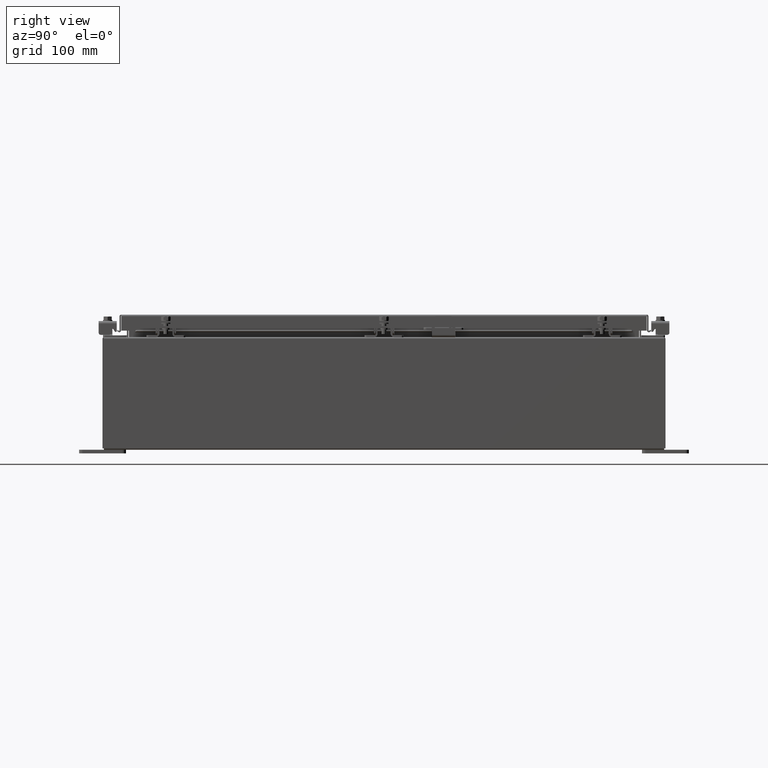
[diagram: clean part render]
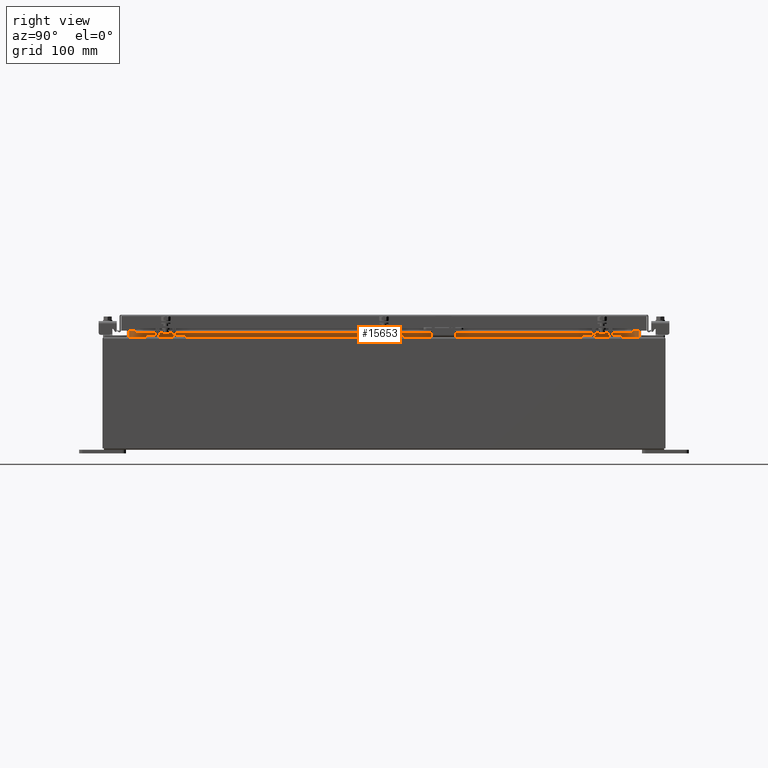
[diagram: same view with one face highlighted and labeled with its STEP entity id]
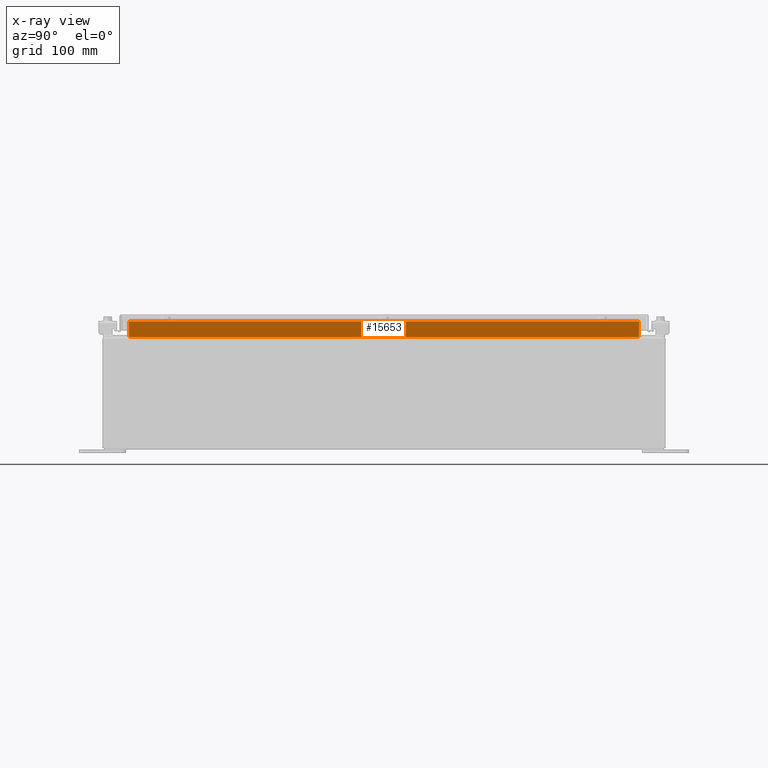
[diagram: x-ray of the same camera — body ghosted, the highlighted face saturated]
A machine part, right view. The second image highlights one B-rep face of the part: STEP entity #15653.
The next image is the same camera in x-ray: the body ghosted, the highlighted face saturated — about 0% of this face is hidden behind the body in this view.
In plain terms, the highlighted planar face has unit normal (1, 0, -0).
Its self-contained STEP definition (entity closure, byte-faithful):
#215 = LINE ( 'NONE', #2054, #14861 ) ;
#1572 = VECTOR ( 'NONE', #26098, 39.37007874015748100 ) ;
#2054 = CARTESIAN_POINT ( 'NONE',  ( 8.699700000000019500, 13.59375000000000700, 5.938300000000010600 ) ) ;
#2692 = CARTESIAN_POINT ( 'NONE',  ( 8.699700000000019500, 13.59375000000000700, 5.925300000000009800 ) ) ;
#3251 = CARTESIAN_POINT ( 'NONE',  ( 8.699700000000021300, -13.59374999999999800, 6.762900000000009900 ) ) ;
#3419 = ORIENTED_EDGE ( 'NONE', *, *, #25498, .F. ) ;
#3509 = EDGE_CURVE ( 'NONE', #21186, #20126, #23344, .T. ) ;
#4991 = DIRECTION ( 'NONE',  ( 8.038541222736220000E-017, -1.000000000000000000, 1.205781183410432900E-016 ) ) ;
#6719 = PLANE ( 'NONE',  #25647 ) ;
#7723 = VECTOR ( 'NONE', #35396, 39.37007874015748100 ) ;
#8196 = LINE ( 'NONE', #33148, #21063 ) ;
#10230 = LINE ( 'NONE', #2692, #1572 ) ;
#14861 = VECTOR ( 'NONE', #4991, 39.37007874015748100 ) ;
#15561 = CARTESIAN_POINT ( 'NONE',  ( 8.699699999999998200, 0.0000000000000000000, -3.082190596409509000E-014 ) ) ;
#15651 = CARTESIAN_POINT ( 'NONE',  ( 8.699700000000019500, -13.59375000000000000, 5.938300000000011500 ) ) ;
#15653 = ADVANCED_FACE ( 'NONE', ( #32448 ), #6719, .T. ) ;
#16937 = ORIENTED_EDGE ( 'NONE', *, *, #3509, .F. ) ;
#18519 = DIRECTION ( 'NONE',  ( -3.542869979895294000E-015, 0.0000000000000000000, -1.000000000000000000 ) ) ;
#20126 = VERTEX_POINT ( 'NONE', #26467 ) ;
#20600 = ORIENTED_EDGE ( 'NONE', *, *, #36901, .F. ) ;
#21063 = VECTOR ( 'NONE', #36135, 39.37007874015748100 ) ;
#21186 = VERTEX_POINT ( 'NONE', #31910 ) ;
#21325 = EDGE_LOOP ( 'NONE', ( #3419, #16937, #31996, #20600 ) ) ;
#21989 = EDGE_CURVE ( 'NONE', #29240, #21186, #8196, .T. ) ;
#22276 = VERTEX_POINT ( 'NONE', #34559 ) ;
#23344 = LINE ( 'NONE', #3251, #7723 ) ;
#25498 = EDGE_CURVE ( 'NONE', #20126, #22276, #10230, .T. ) ;
#25647 = AXIS2_PLACEMENT_3D ( 'NONE', #15561, #36055, #18519 ) ;
#26098 = DIRECTION ( 'NONE',  ( -3.542869979895294000E-015, -0.0000000000000000000, -1.000000000000000000 ) ) ;
#26467 = CARTESIAN_POINT ( 'NONE',  ( 8.699700000000021300, 13.59375000000000700, 6.762900000000009900 ) ) ;
#29240 = VERTEX_POINT ( 'NONE', #15651 ) ;
#31910 = CARTESIAN_POINT ( 'NONE',  ( 8.699700000000023100, -13.59374999999999800, 6.762900000000009900 ) ) ;
#31996 = ORIENTED_EDGE ( 'NONE', *, *, #21989, .F. ) ;
#32448 = FACE_OUTER_BOUND ( 'NONE', #21325, .T. ) ;
#33148 = CARTESIAN_POINT ( 'NONE',  ( 8.699700000000023100, -13.59374999999999800, 6.850600000000010700 ) ) ;
#34559 = CARTESIAN_POINT ( 'NONE',  ( 8.699700000000019500, 13.59375000000000900, 5.938300000000011500 ) ) ;
#35396 = DIRECTION ( 'NONE',  ( 0.0000000000000000000, 1.000000000000000000, 0.0000000000000000000 ) ) ;
#36055 = DIRECTION ( 'NONE',  ( 1.000000000000000000, 0.0000000000000000000, -3.542869979895294000E-015 ) ) ;
#36135 = DIRECTION ( 'NONE',  ( 3.542869979895302300E-015, -0.0000000000000000000, 1.000000000000000000 ) ) ;
#36901 = EDGE_CURVE ( 'NONE', #22276, #29240, #215, .T. ) ;